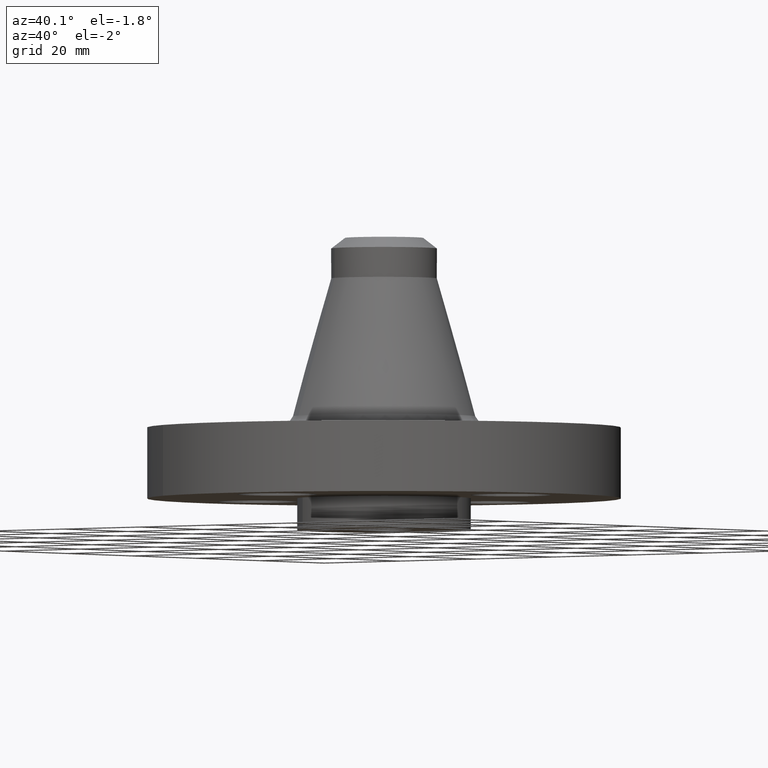
[diagram: clean part render]
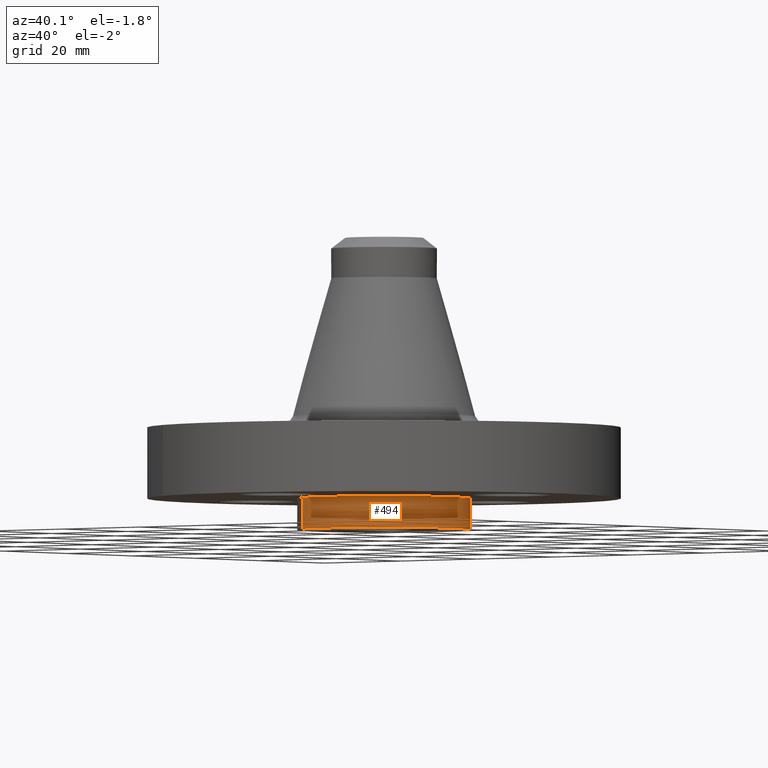
[diagram: same view with one face highlighted and labeled with its STEP entity id]
A machine part, auxiliary view. The second image highlights one B-rep face of the part: STEP entity #494.
In plain terms, the highlighted cylindrical surface (partial cylindrical patch) has radius 17.526 mm, axis along (0, 0, -1).
Its self-contained STEP definition (entity closure, byte-faithful):
#413=AXIS2_PLACEMENT_3D('Circle Axis2P3D',#411,#412,$) ;
#455=AXIS2_PLACEMENT_3D('Cylinder Axis2P3D',#452,#453,#454) ;
#485=AXIS2_PLACEMENT_3D('Circle Axis2P3D',#483,#484,$) ;
#406=CARTESIAN_POINT('Vertex',(-0.330803621638,-0.605531967707,-0.250000000001)) ;
#408=CARTESIAN_POINT('Vertex',(0.330803621638,0.605531967707,-0.250000000001)) ;
#411=CARTESIAN_POINT('Axis2P3D Location',(0.,0.,-0.250000000001)) ;
#452=CARTESIAN_POINT('Axis2P3D Location',(0.,0.,0.905000000004)) ;
#457=CARTESIAN_POINT('Line Origine',(-0.330803621638,-0.605531967707,-0.125000000001)) ;
#461=CARTESIAN_POINT('Vertex',(-0.330803621638,-0.605531967707,0.)) ;
#468=CARTESIAN_POINT('Vertex',(0.330803621638,0.605531967707,0.)) ;
#471=CARTESIAN_POINT('Line Origine',(0.330803621638,0.605531967707,-0.125000000001)) ;
#483=CARTESIAN_POINT('Axis2P3D Location',(0.,0.,0.)) ;
#412=DIRECTION('Axis2P3D Direction',(0.,0.,-0.0393700787402)) ;
#453=DIRECTION('Axis2P3D Direction',(0.,0.,-0.0393700787402)) ;
#454=DIRECTION('Axis2P3D XDirection',(0.0188750212049,0.0345504945626,0.)) ;
#458=DIRECTION('Vector Direction',(0.,0.,-0.0393700787402)) ;
#472=DIRECTION('Vector Direction',(0.,0.,-0.0393700787402)) ;
#484=DIRECTION('Axis2P3D Direction',(0.,0.,-0.0393700787402)) ;
#459=VECTOR('Line Direction',#458,0.0393700787402) ;
#473=VECTOR('Line Direction',#472,0.0393700787402) ;
#489=ORIENTED_EDGE('',*,*,#415,.F.) ;
#490=ORIENTED_EDGE('',*,*,#475,.T.) ;
#491=ORIENTED_EDGE('',*,*,#487,.T.) ;
#492=ORIENTED_EDGE('',*,*,#463,.F.) ;
#494=ADVANCED_FACE('PartBody',(#493),#456,.T.) ;
#414=CIRCLE('generated circle',#413,0.690000000003) ;
#486=CIRCLE('generated circle',#485,0.690000000003) ;
#456=CYLINDRICAL_SURFACE('generated cylinder',#455,0.690000000003) ;
#415=EDGE_CURVE('',#409,#407,#414,.T.) ;
#463=EDGE_CURVE('',#407,#462,#460,.F.) ;
#475=EDGE_CURVE('',#409,#469,#474,.F.) ;
#487=EDGE_CURVE('',#469,#462,#486,.T.) ;
#488=EDGE_LOOP('',(#489,#490,#491,#492)) ;
#493=FACE_OUTER_BOUND('',#488,.T.) ;
#460=LINE('Line',#457,#459) ;
#474=LINE('Line',#471,#473) ;
#407=VERTEX_POINT('',#406) ;
#409=VERTEX_POINT('',#408) ;
#462=VERTEX_POINT('',#461) ;
#469=VERTEX_POINT('',#468) ;